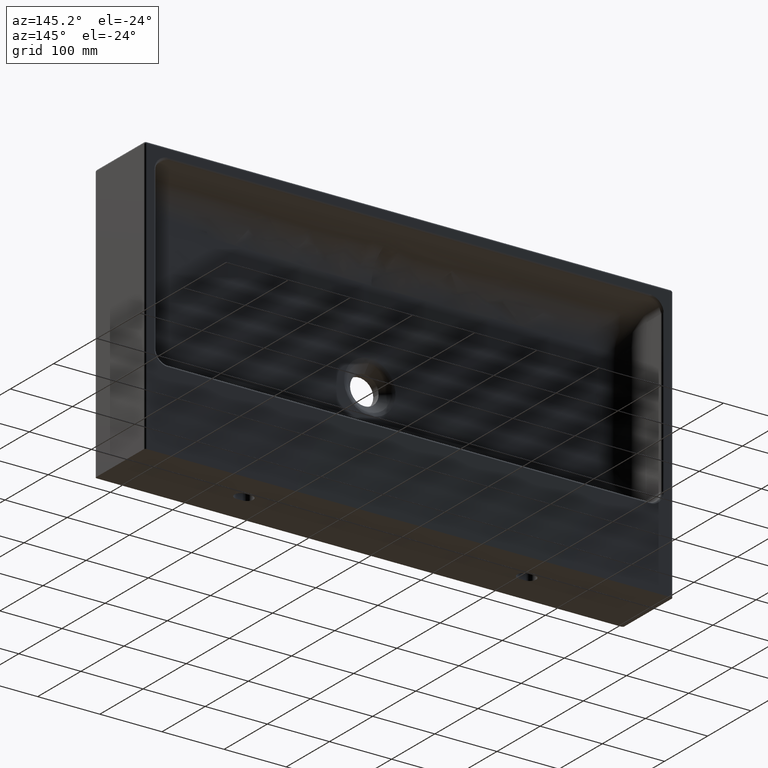
[diagram: clean part render]
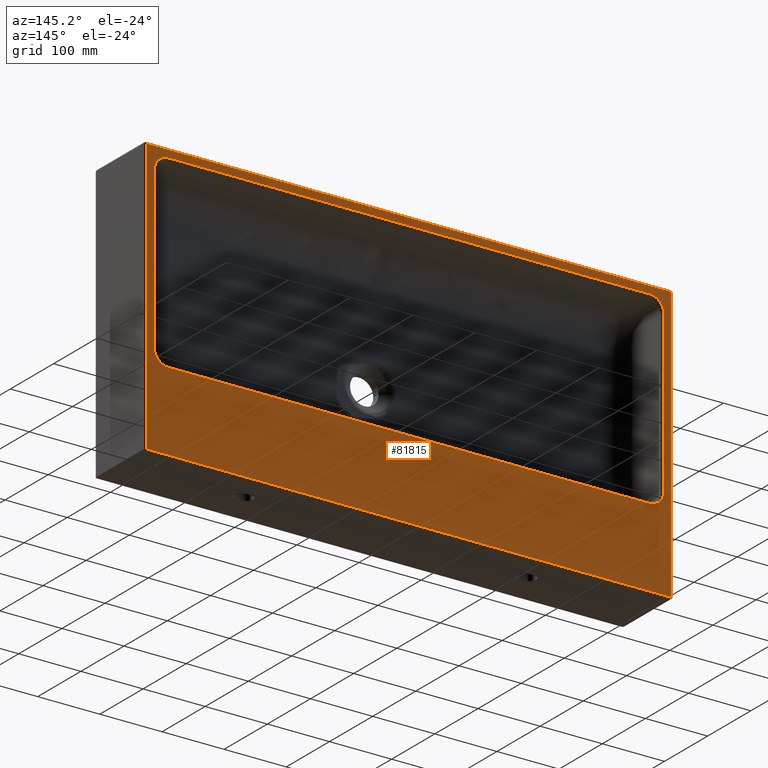
[diagram: same view with one face highlighted and labeled with its STEP entity id]
A machine part, auxiliary view. The second image highlights one B-rep face of the part: STEP entity #81815.
In plain terms, the highlighted planar face has unit normal (-0, 1, 0).
Its self-contained STEP definition (entity closure, byte-faithful):
#284 = VERTEX_POINT ( 'NONE', #84750 ) ;
#646 = VERTEX_POINT ( 'NONE', #44281 ) ;
#2771 = CARTESIAN_POINT ( 'NONE',  ( 113.0484051991952300, 115.9999999999999900, 429.9480917894258600 ) ) ;
#3109 = CARTESIAN_POINT ( 'NONE',  ( 110.0388421768443000, 116.0000000000000000, 429.8000445286256200 ) ) ;
#3438 = CARTESIAN_POINT ( 'NONE',  ( 90.19999047427396000, 115.9999999999999900, 409.9616186329737400 ) ) ;
#3553 = EDGE_CURVE ( 'NONE', #77638, #93257, #42614, .T. ) ;
#3672 = LINE ( 'NONE', #89387, #43915 ) ;
#4553 = CARTESIAN_POINT ( 'NONE',  ( 909.9480917895222100, 115.9999999999999900, 406.9515948008834100 ) ) ;
#4725 = CARTESIAN_POINT ( 'NONE',  ( 97.85106912546953600, 115.9999999999999900, 132.7228502683233800 ) ) ;
#4869 = CARTESIAN_POINT ( 'NONE',  ( 78.00000000000001400, 115.9999999999999900, 59.99999999995920100 ) ) ;
#4884 = CARTESIAN_POINT ( 'NONE',  ( 905.2369573261867100, 115.9999999999999900, 420.9794046611306200 ) ) ;
#5061 = CARTESIAN_POINT ( 'NONE',  ( 902.1482919317671800, 115.9999999999999900, 132.7223144608057100 ) ) ;
#5512 = DIRECTION ( 'NONE',  ( 1.000000000000000000, 0.0000000000000000000, 0.0000000000000000000 ) ) ;
#7357 = LINE ( 'NONE', #94914, #83010 ) ;
#7753 = LINE ( 'NONE', #82520, #70520 ) ;
#7935 = ORIENTED_EDGE ( 'NONE', *, *, #3553, .T. ) ;
#8401 = LINE ( 'NONE', #58556, #26186 ) ;
#9914 = CARTESIAN_POINT ( 'NONE',  ( 909.9480917901473700, 115.9999999999999900, 150.0484051991554700 ) ) ;
#10422 = EDGE_CURVE ( 'NONE', #60896, #646, #30020, .T. ) ;
#10788 = CARTESIAN_POINT ( 'NONE',  ( 105.6385741867446500, 115.9999999999999900, 428.7738647994447100 ) ) ;
#11125 = CARTESIAN_POINT ( 'NONE',  ( 90.05190820691311200, 115.9999999999999900, 406.9515948008906900 ) ) ;
#11249 = CARTESIAN_POINT ( 'NONE',  ( 921.9999999999971600, 115.9999999999999900, 59.99999999988963900 ) ) ;
#11720 = VERTEX_POINT ( 'NONE', #52827 ) ;
#11769 = CARTESIAN_POINT ( 'NONE',  ( 90.05194905740407300, 115.9999999999999900, 148.5423743104026400 ) ) ;
#12411 = CARTESIAN_POINT ( 'NONE',  ( 101.5237144335871600, 115.9999999999999900, 130.0907204435614200 ) ) ;
#12570 = CARTESIAN_POINT ( 'NONE',  ( 902.1483475272608500, 115.9999999999999900, 424.2777348101514000 ) ) ;
#12751 = CARTESIAN_POINT ( 'NONE',  ( 905.2366684172874300, 116.0000000000000000, 136.0205080011552400 ) ) ;
#13092 = VERTEX_POINT ( 'NONE', #14795 ) ;
#13136 = CARTESIAN_POINT ( 'NONE',  ( 909.9480917895222100, 115.9999999999999900, 406.9515948008834100 ) ) ;
#13569 = PLANE ( 'NONE',  #15623 ) ;
#13642 = VERTEX_POINT ( 'NONE', #4869 ) ;
#14795 = CARTESIAN_POINT ( 'NONE',  ( 77.99999999999995700, 115.9999999999999900, 0.0000000000000000000 ) ) ;
#15623 = AXIS2_PLACEMENT_3D ( 'NONE', #66474, #73983, #28692 ) ;
#16904 = VERTEX_POINT ( 'NONE', #56540 ) ;
#18394 = CARTESIAN_POINT ( 'NONE',  ( 101.5238352052625600, 115.9999999999999900, 426.9094040689669200 ) ) ;
#20011 = CARTESIAN_POINT ( 'NONE',  ( 105.6396288434189300, 115.9999999999999900, 128.2256971934987200 ) ) ;
#20170 = CARTESIAN_POINT ( 'NONE',  ( 898.4767028874858900, 115.9999999999999900, 426.9091075146419000 ) ) ;
#20347 = CARTESIAN_POINT ( 'NONE',  ( 907.6215884756928700, 116.0000000000000000, 139.8565888365839400 ) ) ;
#22030 = EDGE_CURVE ( 'NONE', #97445, #11720, #54830, .T. ) ;
#22839 = DIRECTION ( 'NONE',  ( -0.0000000000000000000, -0.0000000000000000000, 1.000000000000000000 ) ) ;
#23809 = EDGE_CURVE ( 'NONE', #85637, #25799, #7357, .T. ) ;
#25799 = VERTEX_POINT ( 'NONE', #13136 ) ;
#25958 = CARTESIAN_POINT ( 'NONE',  ( 97.85112130977907400, 115.9999999999999900, 424.2770891990059000 ) ) ;
#26186 = VECTOR ( 'NONE', #5512, 1000.000000000000000 ) ;
#27225 = CARTESIAN_POINT ( 'NONE',  ( 90.19995547084805300, 116.0000000000000000, 147.0388421784776100 ) ) ;
#27538 = CARTESIAN_POINT ( 'NONE',  ( 110.0383813677092600, 115.9999999999999900, 127.1999904741925600 ) ) ;
#27544 = CARTESIAN_POINT ( 'NONE',  ( 889.9609583271455900, 116.0000000000000000, 127.1999335491981200 ) ) ;
#27699 = CARTESIAN_POINT ( 'NONE',  ( 894.3609226495950700, 115.9999999999999900, 428.7741563168665900 ) ) ;
#27881 = CARTESIAN_POINT ( 'NONE',  ( 909.2125900594576300, 116.0000000000000000, 144.0855008115485100 ) ) ;
#28692 = DIRECTION ( 'NONE',  ( 1.000000000000000000, 0.0000000000000000000, 0.0000000000000000000 ) ) ;
#28917 = EDGE_CURVE ( 'NONE', #13642, #60896, #85307, .T. ) ;
#30020 = LINE ( 'NONE', #80436, #90299 ) ;
#31531 = ORIENTED_EDGE ( 'NONE', *, *, #10422, .T. ) ;
#31640 = EDGE_CURVE ( 'NONE', #93257, #39688, #8401, .T. ) ;
#31824 = EDGE_CURVE ( 'NONE', #13092, #13642, #3672, .T. ) ;
#32722 = ORIENTED_EDGE ( 'NONE', *, *, #82146, .T. ) ;
#32769 = EDGE_CURVE ( 'NONE', #39688, #85637, #93397, .T. ) ;
#33555 = CARTESIAN_POINT ( 'NONE',  ( 94.76347228999605900, 116.0000000000000000, 420.9799271092199400 ) ) ;
#33855 = CARTESIAN_POINT ( 'NONE',  ( 0.0000000000000000000, 115.9999999999999900, 127.0519082068760100 ) ) ;
#34071 = LINE ( 'NONE', #82679, #35091 ) ;
#34824 = CARTESIAN_POINT ( 'NONE',  ( 91.22613520027503900, 115.9999999999999900, 142.6385741872379100 ) ) ;
#34971 = CARTESIAN_POINT ( 'NONE',  ( 909.8000664511857800, 116.0000000000000000, 409.9609583254084600 ) ) ;
#35091 = VECTOR ( 'NONE', #68215, 1000.000000000000000 ) ;
#35144 = CARTESIAN_POINT ( 'NONE',  ( 113.0484051991874600, 115.9999999999999900, 127.0519082068760100 ) ) ;
#35149 = CARTESIAN_POINT ( 'NONE',  ( 892.9151617840375400, 115.9999999999999900, 127.7874464872159900 ) ) ;
#35308 = CARTESIAN_POINT ( 'NONE',  ( 889.9616220145943500, 115.9999999999999900, 429.8000333193908200 ) ) ;
#35486 = CARTESIAN_POINT ( 'NONE',  ( 909.9480475920489700, 116.0000000000000000, 148.5416679434074200 ) ) ;
#37783 = B_SPLINE_CURVE_WITH_KNOTS ( 'NONE', 3,
 ( #65018, #11769, #27225, #80112, #34824, #87675, #42446, #95263, #50129, #4725, #57788, #12411, #65344, #20011, #72854, #27538, #80437, #35144 ),
 .UNSPECIFIED., .F., .F.,
 ( 4, 2, 2, 2, 2, 2, 2, 2, 4 ),
 ( 0.0000000000000000000, 0.1250000000000000000, 0.2500000000000000000, 0.3750000000000000000, 0.5000000000000000000, 0.6250000000000000000, 0.7500000000000000000, 0.8750000000000000000, 1.000000000000000000 ),
 .UNSPECIFIED. ) ;
#38473 = CARTESIAN_POINT ( 'NONE',  ( 90.05190820691311200, 115.9999999999999900, 406.9515948008906900 ) ) ;
#39688 = VERTEX_POINT ( 'NONE', #87156 ) ;
#39843 = VECTOR ( 'NONE', #95738, 1000.000000000000000 ) ;
#39901 = ORIENTED_EDGE ( 'NONE', *, *, #93016, .T. ) ;
#40406 = EDGE_LOOP ( 'NONE', ( #68227, #32722, #75269, #80046, #44568, #31531 ) ) ;
#41166 = CARTESIAN_POINT ( 'NONE',  ( 92.37860545235759000, 116.0000000000000000, 417.1439481193284000 ) ) ;
#42155 = CARTESIAN_POINT ( 'NONE',  ( 1001.000000013013100, 115.9999999999999900, 0.0000000000000000000 ) ) ;
#42446 = CARTESIAN_POINT ( 'NONE',  ( 93.09059593179631500, 115.9999999999999900, 138.5238352042369200 ) ) ;
#42595 = CARTESIAN_POINT ( 'NONE',  ( 908.7741349392680400, 115.9999999999999900, 414.3605818673826200 ) ) ;
#42614 = LINE ( 'NONE', #33855, #80439 ) ;
#42772 = CARTESIAN_POINT ( 'NONE',  ( 897.1437381092696300, 115.9999999999999900, 129.3784354398345900 ) ) ;
#42799 = EDGE_LOOP ( 'NONE', ( #91820, #78902, #81275, #43444, #7935, #50646, #52985, #95458, #39901 ) ) ;
#42918 = CARTESIAN_POINT ( 'NONE',  ( 886.9515948008073600, 115.9999999999999900, 429.9480917902252500 ) ) ;
#43136 = EDGE_CURVE ( 'NONE', #13092, #284, #86285, .T. ) ;
#43444 = ORIENTED_EDGE ( 'NONE', *, *, #67487, .T. ) ;
#43915 = VECTOR ( 'NONE', #51849, 1000.000000000000000 ) ;
#43937 = CARTESIAN_POINT ( 'NONE',  ( 77.99999999999995700, 115.9999999999999900, 442.0000000000006800 ) ) ;
#44204 = CARTESIAN_POINT ( 'NONE',  ( 500.0000000000001100, 115.9999999999999900, 127.0519082106156800 ) ) ;
#44281 = CARTESIAN_POINT ( 'NONE',  ( 922.0000000000000000, 115.9999999999999900, 442.0000000000000600 ) ) ;
#44568 = ORIENTED_EDGE ( 'NONE', *, *, #28917, .T. ) ;
#46606 = VERTEX_POINT ( 'NONE', #11249 ) ;
#47999 = EDGE_CURVE ( 'NONE', #11720, #66099, #72778, .T. ) ;
#48105 = FACE_OUTER_BOUND ( 'NONE', #40406, .T. ) ;
#48848 = CARTESIAN_POINT ( 'NONE',  ( 90.78738783435035500, 116.0000000000000000, 412.9145016422429500 ) ) ;
#50129 = CARTESIAN_POINT ( 'NONE',  ( 95.72291080072687900, 115.9999999999999900, 134.8511213101635900 ) ) ;
#50281 = CARTESIAN_POINT ( 'NONE',  ( 906.9088457144121100, 115.9999999999999900, 418.4768070880162400 ) ) ;
#50459 = CARTESIAN_POINT ( 'NONE',  ( 900.9794046630328200, 115.9999999999999900, 131.7630426752003500 ) ) ;
#50646 = ORIENTED_EDGE ( 'NONE', *, *, #31640, .T. ) ;
#51849 = DIRECTION ( 'NONE',  ( -0.0000000000000000000, -0.0000000000000000000, 1.000000000000000000 ) ) ;
#52827 = CARTESIAN_POINT ( 'NONE',  ( 113.0484051991952300, 115.9999999999999900, 429.9480917894258600 ) ) ;
#52985 = ORIENTED_EDGE ( 'NONE', *, *, #32769, .T. ) ;
#54830 = LINE ( 'NONE', #56198, #72471 ) ;
#56176 = CARTESIAN_POINT ( 'NONE',  ( 107.0850372895711500, 115.9999999999999900, 429.2125753076214200 ) ) ;
#56198 = CARTESIAN_POINT ( 'NONE',  ( 0.0000000000000000000, 115.9999999999999900, 429.9480917902142800 ) ) ;
#56516 = CARTESIAN_POINT ( 'NONE',  ( 90.05192107938557900, 116.0000000000000000, 408.4581874664742700 ) ) ;
#56540 = CARTESIAN_POINT ( 'NONE',  ( 90.05190821065211500, 115.9999999999999900, 150.0484051991581400 ) ) ;
#57485 = DIRECTION ( 'NONE',  ( 1.000000000000000000, -0.0000000000000000000, -0.0000000000000000000 ) ) ;
#57788 = CARTESIAN_POINT ( 'NONE',  ( 99.02007288990140000, 116.0000000000000000, 131.7634722905478400 ) ) ;
#57939 = CARTESIAN_POINT ( 'NONE',  ( 904.2776855408544600, 115.9999999999999900, 422.1482919302997600 ) ) ;
#58114 = CARTESIAN_POINT ( 'NONE',  ( 904.2777348085281800, 115.9999999999999900, 134.8516524710046800 ) ) ;
#58257 = CARTESIAN_POINT ( 'NONE',  ( 90.05190820691305500, 115.9999999999999900, 445.0000000000000000 ) ) ;
#58556 = CARTESIAN_POINT ( 'NONE',  ( 0.0000000000000000000, 115.9999999999999900, 127.0519082106159100 ) ) ;
#60082 = LINE ( 'NONE', #58257, #39843 ) ;
#60896 = VERTEX_POINT ( 'NONE', #43937 ) ;
#63766 = CARTESIAN_POINT ( 'NONE',  ( 102.8570975823152800, 115.9999999999999900, 427.6218556665667200 ) ) ;
#64374 = EDGE_CURVE ( 'NONE', #646, #46606, #34071, .T. ) ;
#65018 = CARTESIAN_POINT ( 'NONE',  ( 90.05190821065211500, 115.9999999999999900, 150.0484051991581400 ) ) ;
#65308 = DIRECTION ( 'NONE',  ( -0.0000000000000000000, -0.0000000000000000000, 1.000000000000000000 ) ) ;
#65344 = CARTESIAN_POINT ( 'NONE',  ( 102.8560518806731200, 116.0000000000000000, 129.3786054522439900 ) ) ;
#65497 = CARTESIAN_POINT ( 'NONE',  ( 900.9794919978212400, 116.0000000000000000, 425.2366684179743900 ) ) ;
#65674 = CARTESIAN_POINT ( 'NONE',  ( 906.9091075151722000, 115.9999999999999900, 138.5232971134632000 ) ) ;
#66099 = VERTEX_POINT ( 'NONE', #38473 ) ;
#66291 = VECTOR ( 'NONE', #57485, 1000.000000000000000 ) ;
#66474 = CARTESIAN_POINT ( 'NONE',  ( 0.0000000000000000000, 115.9999999999999900, 445.0000000000000000 ) ) ;
#66781 = DIRECTION ( 'NONE',  ( -0.0000000000000000000, -0.0000000000000000000, -1.000000000000000000 ) ) ;
#67487 = EDGE_CURVE ( 'NONE', #16904, #77638, #37783, .T. ) ;
#68168 = FACE_BOUND ( 'NONE', #42799, .T. ) ;
#68215 = DIRECTION ( 'NONE',  ( 0.0000000000000000000, 0.0000000000000000000, -1.000000000000000000 ) ) ;
#68227 = ORIENTED_EDGE ( 'NONE', *, *, #64374, .T. ) ;
#68277 = B_SPLINE_CURVE_WITH_KNOTS ( 'NONE', 3,
 ( #4553, #72683, #34971, #87828, #42595, #95421, #50281, #4884, #57939, #12570, #65497, #20170, #73006, #27699, #80595, #35308, #88155, #42918 ),
 .UNSPECIFIED., .F., .F.,
 ( 4, 2, 2, 2, 2, 2, 2, 2, 4 ),
 ( 0.0000000000000000000, 0.1250000000000000000, 0.2500000000000000000, 0.3750000000000000000, 0.5000000000000000000, 0.6250000000000000000, 0.7500000000000000000, 0.8750000000000000000, 1.000000000000000000 ),
 .UNSPECIFIED. ) ;
#68741 = CARTESIAN_POINT ( 'NONE',  ( 886.9515948008073600, 115.9999999999999900, 429.9480917902252500 ) ) ;
#70520 = VECTOR ( 'NONE', #66781, 1000.000000000000000 ) ;
#71262 = CARTESIAN_POINT ( 'NONE',  ( 99.01997124243642600, 115.9999999999999900, 425.2363994429266500 ) ) ;
#72471 = VECTOR ( 'NONE', #78853, 1000.000000000000000 ) ;
#72683 = CARTESIAN_POINT ( 'NONE',  ( 909.9480741119194800, 115.9999999999999900, 408.4574911452789900 ) ) ;
#72778 = B_SPLINE_CURVE_WITH_KNOTS ( 'NONE', 3,
 ( #2771, #85745, #3109, #56176, #10788, #63766, #18394, #71262, #25958, #78831, #33555, #86414, #41166, #93993, #48848, #3438, #56516, #11125 ),
 .UNSPECIFIED., .F., .F.,
 ( 4, 2, 2, 2, 2, 2, 2, 2, 4 ),
 ( 0.0000000000000000000, 0.1250000000000000000, 0.2500000000000000000, 0.3750000000000000000, 0.5000000000000000000, 0.6250000000000000000, 0.7500000000000000000, 0.8750000000000000000, 1.000000000000000000 ),
 .UNSPECIFIED. ) ;
#72854 = CARTESIAN_POINT ( 'NONE',  ( 107.0854983572278200, 116.0000000000000000, 127.7873878343581100 ) ) ;
#72861 = CARTESIAN_POINT ( 'NONE',  ( 888.4574911465885000, 115.9999999999999900, 127.0519258880417700 ) ) ;
#73006 = CARTESIAN_POINT ( 'NONE',  ( 897.1434111635136300, 116.0000000000000000, 427.6215884757296000 ) ) ;
#73105 = EDGE_CURVE ( 'NONE', #66099, #16904, #60082, .T. ) ;
#73180 = CARTESIAN_POINT ( 'NONE',  ( 908.7741563167472800, 115.9999999999999900, 142.6390773502340600 ) ) ;
#73983 = DIRECTION ( 'NONE',  ( -0.0000000000000000000, 1.000000000000000000, 0.0000000000000000000 ) ) ;
#75269 = ORIENTED_EDGE ( 'NONE', *, *, #43136, .F. ) ;
#77638 = VERTEX_POINT ( 'NONE', #84766 ) ;
#78831 = CARTESIAN_POINT ( 'NONE',  ( 95.72285026878141400, 115.9999999999999900, 422.1489308749538100 ) ) ;
#78853 = DIRECTION ( 'NONE',  ( -1.000000000000000000, -0.0000000000000000000, -0.0000000000000000000 ) ) ;
#78902 = ORIENTED_EDGE ( 'NONE', *, *, #47999, .T. ) ;
#79930 = DIRECTION ( 'NONE',  ( 1.000000000000000000, 0.0000000000000000000, 0.0000000000000000000 ) ) ;
#80046 = ORIENTED_EDGE ( 'NONE', *, *, #31824, .T. ) ;
#80112 = CARTESIAN_POINT ( 'NONE',  ( 90.78742469306317300, 115.9999999999999900, 144.0850372878640000 ) ) ;
#80436 = CARTESIAN_POINT ( 'NONE',  ( 0.0000000000000000000, 115.9999999999999900, 442.0000000000000000 ) ) ;
#80437 = CARTESIAN_POINT ( 'NONE',  ( 111.5418125334499300, 116.0000000000000000, 127.0519210793489600 ) ) ;
#80439 = VECTOR ( 'NONE', #87999, 1000.000000000000000 ) ;
#80443 = CARTESIAN_POINT ( 'NONE',  ( 886.9515948008053100, 115.9999999999999900, 127.0519082104412700 ) ) ;
#80595 = CARTESIAN_POINT ( 'NONE',  ( 892.9144991898434700, 116.0000000000000000, 429.2125900594041400 ) ) ;
#80778 = CARTESIAN_POINT ( 'NONE',  ( 909.8000333191796500, 115.9999999999999900, 147.0383779839409000 ) ) ;
#81275 = ORIENTED_EDGE ( 'NONE', *, *, #73105, .T. ) ;
#81815 = ADVANCED_FACE ( 'NONE', ( #48105, #68168 ), #13569, .T. ) ;
#82146 = EDGE_CURVE ( 'NONE', #46606, #284, #7753, .T. ) ;
#82520 = CARTESIAN_POINT ( 'NONE',  ( 921.9999999999997700, 115.9999999999999900, 445.0000000000000000 ) ) ;
#82679 = CARTESIAN_POINT ( 'NONE',  ( 921.9999999999998900, 115.9999999999999900, 445.0000000000000000 ) ) ;
#83010 = VECTOR ( 'NONE', #65308, 1000.000000000000000 ) ;
#84750 = CARTESIAN_POINT ( 'NONE',  ( 921.9999999999997700, 115.9999999999999900, 0.0000000000000000000 ) ) ;
#84766 = CARTESIAN_POINT ( 'NONE',  ( 113.0484051991874600, 115.9999999999999900, 127.0519082068760100 ) ) ;
#85307 = LINE ( 'NONE', #91192, #87690 ) ;
#85637 = VERTEX_POINT ( 'NONE', #9914 ) ;
#85745 = CARTESIAN_POINT ( 'NONE',  ( 111.5423743110657700, 115.9999999999999900, 429.9480509426759300 ) ) ;
#86285 = LINE ( 'NONE', #42155, #66291 ) ;
#86414 = CARTESIAN_POINT ( 'NONE',  ( 93.09072044418651600, 115.9999999999999900, 418.4762855674476900 ) ) ;
#87156 = CARTESIAN_POINT ( 'NONE',  ( 886.9515948008053100, 115.9999999999999900, 127.0519082104412700 ) ) ;
#87675 = CARTESIAN_POINT ( 'NONE',  ( 92.37814433387055100, 115.9999999999999900, 139.8570975817466100 ) ) ;
#87690 = VECTOR ( 'NONE', #22839, 1000.000000000000000 ) ;
#87828 = CARTESIAN_POINT ( 'NONE',  ( 909.2125535123250300, 115.9999999999999900, 412.9151617859299100 ) ) ;
#87999 = DIRECTION ( 'NONE',  ( 1.000000000000000000, 0.0000000000000000000, 0.0000000000000000000 ) ) ;
#88009 = CARTESIAN_POINT ( 'NONE',  ( 894.3605818703248400, 115.9999999999999900, 128.2258650621918400 ) ) ;
#88155 = CARTESIAN_POINT ( 'NONE',  ( 888.4583320566367800, 116.0000000000000000, 429.9480475921279200 ) ) ;
#88326 = CARTESIAN_POINT ( 'NONE',  ( 909.9480917901473700, 115.9999999999999900, 150.0484051991554700 ) ) ;
#89387 = CARTESIAN_POINT ( 'NONE',  ( 78.00000000000000000, 115.9999999999999900, 445.0000000000000000 ) ) ;
#90299 = VECTOR ( 'NONE', #79930, 1000.000000000000000 ) ;
#91192 = CARTESIAN_POINT ( 'NONE',  ( 78.00000000000001400, 115.9999999999999900, 445.0000000000000000 ) ) ;
#91820 = ORIENTED_EDGE ( 'NONE', *, *, #22030, .T. ) ;
#93016 = EDGE_CURVE ( 'NONE', #25799, #97445, #68277, .T. ) ;
#93257 = VERTEX_POINT ( 'NONE', #44204 ) ;
#93397 = B_SPLINE_CURVE_WITH_KNOTS ( 'NONE', 3,
 ( #80443, #72861, #27544, #35149, #88009, #42772, #95595, #50459, #5061, #58114, #12751, #65674, #20347, #73180, #27881, #80778, #35486, #88326 ),
 .UNSPECIFIED., .F., .F.,
 ( 4, 2, 2, 2, 2, 2, 2, 2, 4 ),
 ( 0.0000000000000000000, 0.1250000000000000000, 0.2500000000000000000, 0.3750000000000000000, 0.5000000000000000000, 0.6250000000000000000, 0.7500000000000000000, 0.8750000000000000000, 1.000000000000000000 ),
 .UNSPECIFIED. ) ;
#93993 = CARTESIAN_POINT ( 'NONE',  ( 91.22569719345939600, 115.9999999999999900, 414.3603711567325300 ) ) ;
#94914 = CARTESIAN_POINT ( 'NONE',  ( 909.9480917901472600, 115.9999999999999900, 445.0000000000000000 ) ) ;
#95263 = CARTESIAN_POINT ( 'NONE',  ( 94.76360055646543400, 115.9999999999999900, 136.0199712433872900 ) ) ;
#95421 = CARTESIAN_POINT ( 'NONE',  ( 907.6215645586306700, 115.9999999999999900, 417.1437381123677700 ) ) ;
#95458 = ORIENTED_EDGE ( 'NONE', *, *, #23809, .T. ) ;
#95595 = CARTESIAN_POINT ( 'NONE',  ( 898.4768070859580600, 115.9999999999999900, 130.0911542841264700 ) ) ;
#95738 = DIRECTION ( 'NONE',  ( 0.0000000000000000000, 0.0000000000000000000, -1.000000000000000000 ) ) ;
#97445 = VERTEX_POINT ( 'NONE', #68741 ) ;